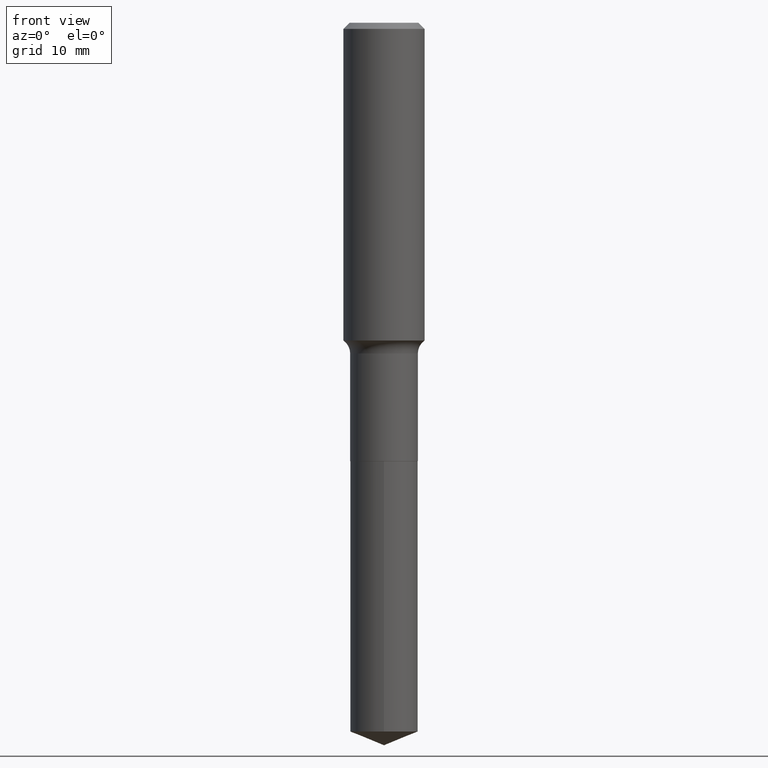
[diagram: clean part render]
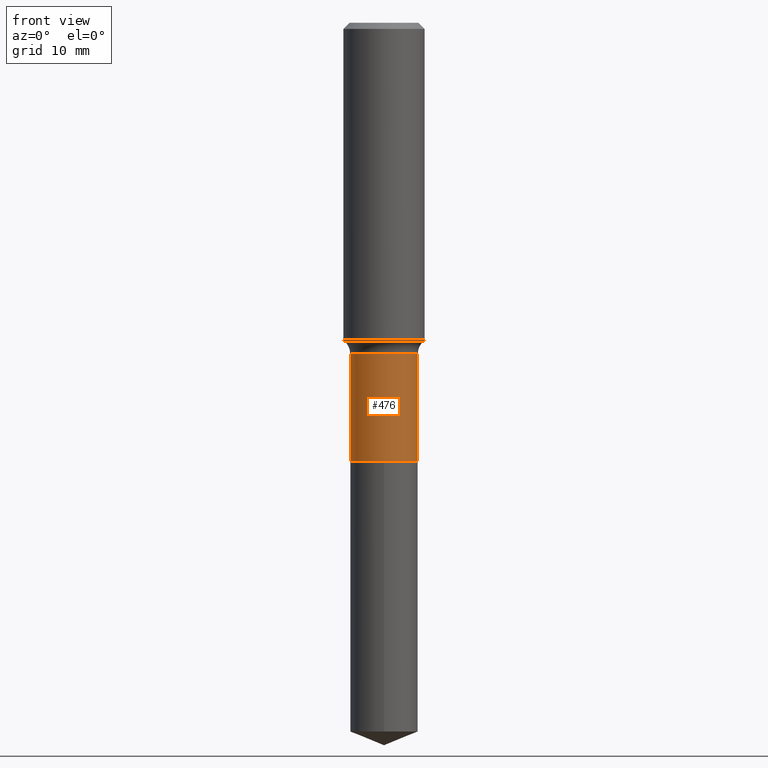
[diagram: same view with one face highlighted and labeled with its STEP entity id]
A machine part, front view. The second image highlights one B-rep face of the part: STEP entity #476.
In plain terms, the highlighted cylindrical surface (edge-blend (fillet) strip) has radius 4.1669 mm, axis along (-0, 0, 1).
Its self-contained STEP definition (entity closure, byte-faithful):
#17 = EDGE_CURVE ( 'NONE', #229, #199, #350, .T. ) ;
#19 = ORIENTED_EDGE ( 'NONE', *, *, #17, .F. ) ;
#35 = AXIS2_PLACEMENT_3D ( 'NONE', #334, #308, #91 ) ;
#42 = CARTESIAN_POINT ( 'NONE',  ( -0.1640500000000000014, 1.165645358014444365E-15, -8.069513015563172164E-30 ) ) ;
#46 = ORIENTED_EDGE ( 'NONE', *, *, #319, .T. ) ;
#83 = CIRCLE ( 'NONE', #35, 0.1640500000000000291 ) ;
#91 = DIRECTION ( 'NONE',  ( 1.000000000000000000, -6.982962677686269077E-15, 0.000000000000000000 ) ) ;
#139 = CARTESIAN_POINT ( 'NONE',  ( 0.000000000000000000, 0.000000000000000000, 0.000000000000000000 ) ) ;
#173 = VECTOR ( 'NONE', #463, 39.37007874015748143 ) ;
#176 = ORIENTED_EDGE ( 'NONE', *, *, #265, .F. ) ;
#184 = ORIENTED_EDGE ( 'NONE', *, *, #232, .T. ) ;
#199 = VERTEX_POINT ( 'NONE', #227 ) ;
#202 = CARTESIAN_POINT ( 'NONE',  ( 0.1640499999999999459, -6.746938539180489683E-15, -1.604299999999999837 ) ) ;
#227 = CARTESIAN_POINT ( 'NONE',  ( -0.1640499999999999459, -5.345443616727195650E-15, -1.604299999999999837 ) ) ;
#229 = VERTEX_POINT ( 'NONE', #233 ) ;
#232 = EDGE_CURVE ( 'NONE', #229, #429, #83, .T. ) ;
#233 = CARTESIAN_POINT ( 'NONE',  ( -0.1640500000000000291, -5.345443616727195650E-15, -2.125399999999999956 ) ) ;
#248 = DIRECTION ( 'NONE',  ( 1.000000000000000000, -6.982962677686266711E-15, 4.876176775795935232E-29 ) ) ;
#260 = DIRECTION ( 'NONE',  ( -2.445468806185136597E-29, 3.491481338843145583E-15, 1.000000000000000000 ) ) ;
#265 = EDGE_CURVE ( 'NONE', #199, #313, #270, .T. ) ;
#269 = CARTESIAN_POINT ( 'NONE',  ( 3.923265605762814630E-29, -5.601383511906058021E-15, -1.604299999999999837 ) ) ;
#270 = CIRCLE ( 'NONE', #383, 0.1640499999999999459 ) ;
#308 = DIRECTION ( 'NONE',  ( -2.445468806185136597E-29, 3.491481338843145583E-15, 1.000000000000000000 ) ) ;
#313 = VERTEX_POINT ( 'NONE', #202 ) ;
#314 = CYLINDRICAL_SURFACE ( 'NONE', #341, 0.1640500000000000014 ) ;
#319 = EDGE_CURVE ( 'NONE', #429, #313, #391, .T. ) ;
#334 = CARTESIAN_POINT ( 'NONE',  ( 5.197599400665889285E-29, -7.420794437577220826E-15, -2.125399999999999956 ) ) ;
#338 = DIRECTION ( 'NONE',  ( 1.000000000000000000, -6.982962677686266711E-15, 0.000000000000000000 ) ) ;
#341 = AXIS2_PLACEMENT_3D ( 'NONE', #139, #260, #248 ) ;
#350 = LINE ( 'NONE', #42, #173 ) ;
#369 = VECTOR ( 'NONE', #394, 39.37007874015748143 ) ;
#383 = AXIS2_PLACEMENT_3D ( 'NONE', #269, #467, #338 ) ;
#391 = LINE ( 'NONE', #424, #369 ) ;
#392 = EDGE_LOOP ( 'NONE', ( #19, #184, #46, #176 ) ) ;
#394 = DIRECTION ( 'NONE',  ( -2.445468806185136877E-29, 3.491481338843145188E-15, 1.000000000000000000 ) ) ;
#399 = CARTESIAN_POINT ( 'NONE',  ( 0.1640500000000000291, -8.566349464851653278E-15, -2.125399999999999956 ) ) ;
#424 = CARTESIAN_POINT ( 'NONE',  ( 0.1640500000000000014, -1.145555027274432057E-15, 7.999368000693231542E-30 ) ) ;
#429 = VERTEX_POINT ( 'NONE', #399 ) ;
#445 = FACE_OUTER_BOUND ( 'NONE', #392, .T. ) ;
#463 = DIRECTION ( 'NONE',  ( -2.445468806185136877E-29, 3.491481338843145188E-15, 1.000000000000000000 ) ) ;
#467 = DIRECTION ( 'NONE',  ( -2.445468806185136597E-29, 3.491481338843145583E-15, 1.000000000000000000 ) ) ;
#476 = ADVANCED_FACE ( 'NONE', ( #445 ), #314, .T. ) ;